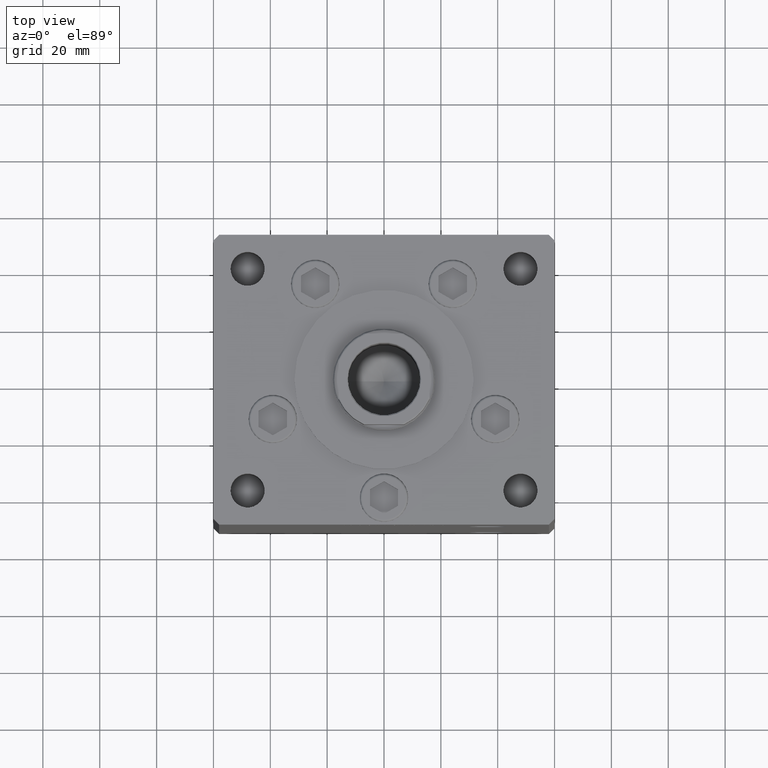
[diagram: clean part render]
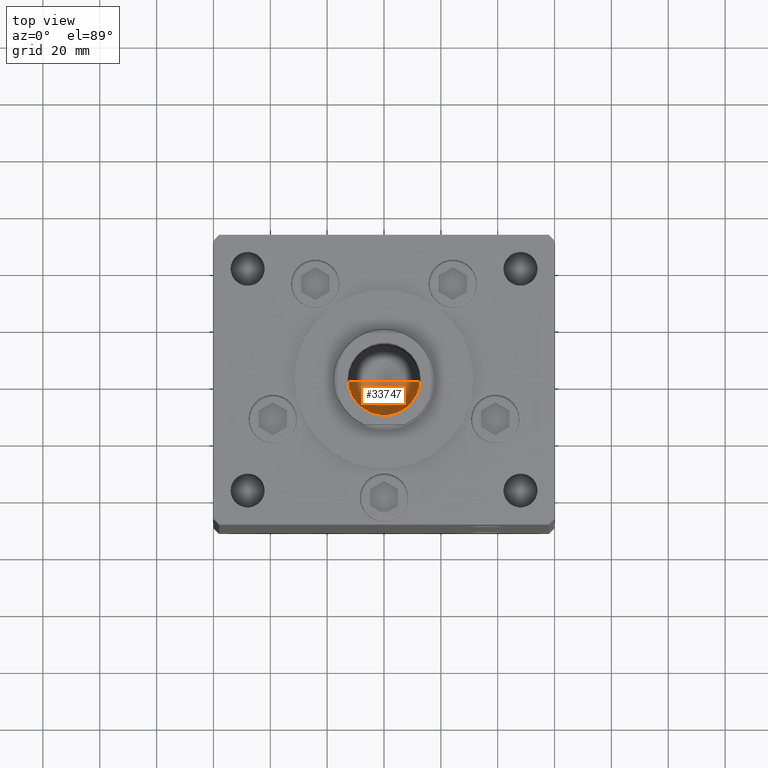
[diagram: same view with one face highlighted and labeled with its STEP entity id]
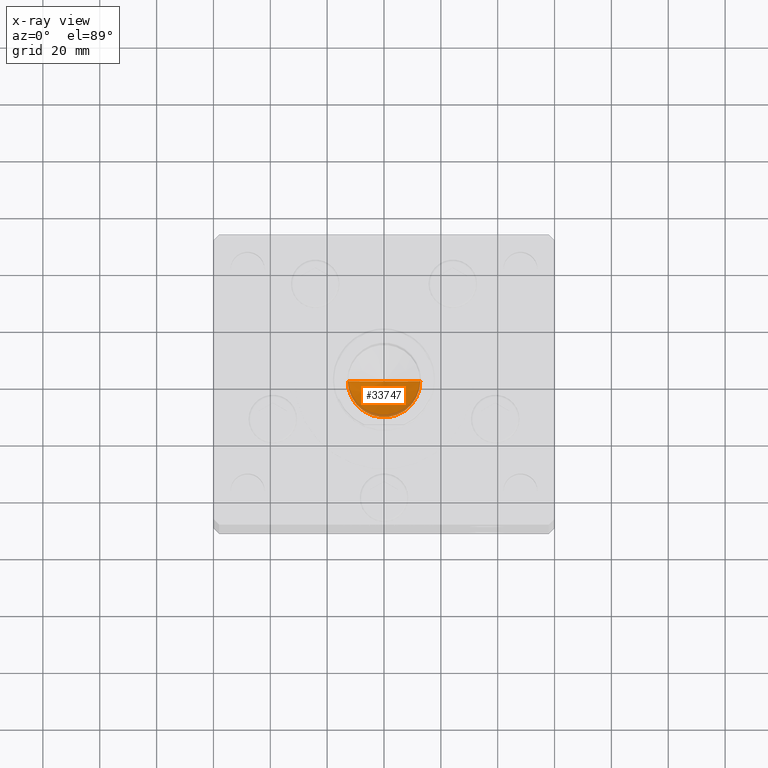
[diagram: x-ray of the same camera — body ghosted, the highlighted face saturated]
A machine part, top view. The second image highlights one B-rep face of the part: STEP entity #33747.
The next image is the same camera in x-ray: the body ghosted, the highlighted face saturated — about 8% of this face is hidden behind the body in this view.
In plain terms, the highlighted conical surface has half-angle 59 deg.
Its self-contained STEP definition (entity closure, byte-faithful):
#1108 = DIRECTION ( 'NONE',  ( 1.000000000000000000, 0.000000000000000000, 0.000000000000000000 ) ) ;
#2970 = DIRECTION ( 'NONE',  ( 1.000000000000000000, 0.000000000000000000, 0.000000000000000000 ) ) ;
#3704 = AXIS2_PLACEMENT_3D ( 'NONE', #14806, #22976, #2970 ) ;
#5055 = DIRECTION ( 'NONE',  ( -0.000000000000000000, -0.000000000000000000, 1.000000000000000000 ) ) ;
#5438 = CARTESIAN_POINT ( 'NONE',  ( -1.307202896762960287E-14, 0.000000000000000000, 116.5890271073986213 ) ) ;
#7396 = CARTESIAN_POINT ( 'NONE',  ( 12.74999999999999112, 0.000000000000000000, 124.2500000000000142 ) ) ;
#7727 = AXIS2_PLACEMENT_3D ( 'NONE', #33508, #5055, #1108 ) ;
#8284 = VECTOR ( 'NONE', #14768, 1000.000000000000000 ) ;
#14755 = VERTEX_POINT ( 'NONE', #15217 ) ;
#14768 = DIRECTION ( 'NONE',  ( 0.8571673007021117785, 0.000000000000000000, 0.5150380749100550437 ) ) ;
#14806 = CARTESIAN_POINT ( 'NONE',  ( 0.000000000000000000, 0.000000000000000000, 124.2500000000000142 ) ) ;
#15217 = CARTESIAN_POINT ( 'NONE',  ( -12.74999999999999112, 1.561424668912874125E-15, 124.2500000000000142 ) ) ;
#17394 = EDGE_CURVE ( 'NONE', #37788, #14755, #51303, .T. ) ;
#19054 = EDGE_LOOP ( 'NONE', ( #34150, #31458, #42894 ) ) ;
#22833 = CARTESIAN_POINT ( 'NONE',  ( -12.74999999999999112, 1.561424668912874125E-15, 124.2500000000000142 ) ) ;
#22976 = DIRECTION ( 'NONE',  ( -0.000000000000000000, -0.000000000000000000, 1.000000000000000000 ) ) ;
#27057 = CIRCLE ( 'NONE', #7727, 12.74999999999999112 ) ;
#27233 = EDGE_CURVE ( 'NONE', #14755, #45415, #27057, .T. ) ;
#28586 = VECTOR ( 'NONE', #46572, 1000.000000000000000 ) ;
#30635 = FACE_OUTER_BOUND ( 'NONE', #19054, .T. ) ;
#31458 = ORIENTED_EDGE ( 'NONE', *, *, #17394, .T. ) ;
#33508 = CARTESIAN_POINT ( 'NONE',  ( 0.000000000000000000, 0.000000000000000000, 124.2500000000000142 ) ) ;
#33747 = ADVANCED_FACE ( 'NONE', ( #30635 ), #39063, .F. ) ;
#34150 = ORIENTED_EDGE ( 'NONE', *, *, #51430, .F. ) ;
#37788 = VERTEX_POINT ( 'NONE', #5438 ) ;
#39063 = CONICAL_SURFACE ( 'NONE', #3704, 12.74999999999999112, 1.029744258676653423 ) ;
#42894 = ORIENTED_EDGE ( 'NONE', *, *, #27233, .T. ) ;
#43483 = LINE ( 'NONE', #7396, #8284 ) ;
#45415 = VERTEX_POINT ( 'NONE', #46166 ) ;
#46166 = CARTESIAN_POINT ( 'NONE',  ( 12.74999999999999112, 0.000000000000000000, 124.2500000000000142 ) ) ;
#46572 = DIRECTION ( 'NONE',  ( -0.8571673007021117785, 1.049727191138617956E-16, 0.5150380749100550437 ) ) ;
#51303 = LINE ( 'NONE', #22833, #28586 ) ;
#51430 = EDGE_CURVE ( 'NONE', #37788, #45415, #43483, .T. ) ;